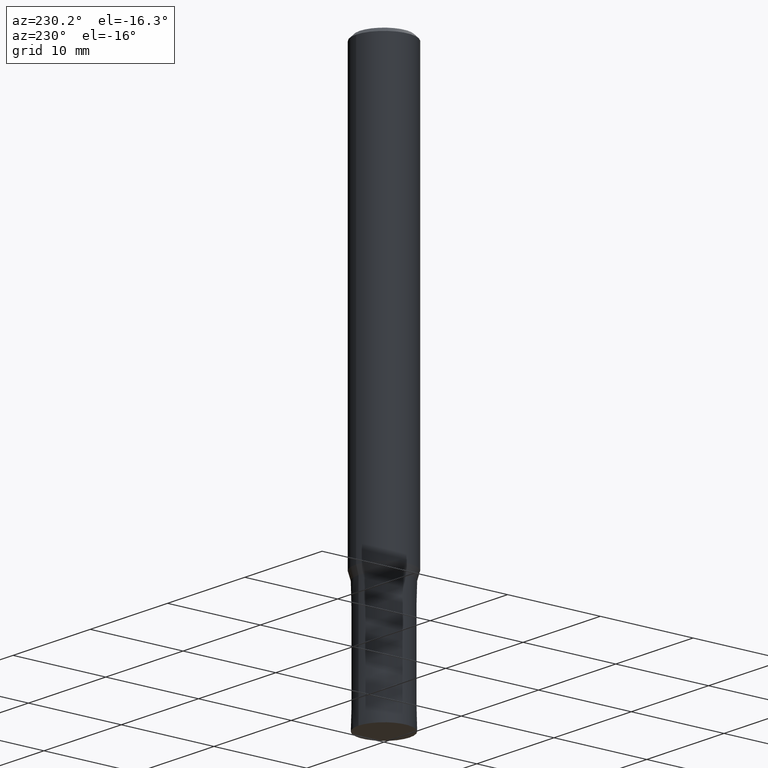
[diagram: clean part render]
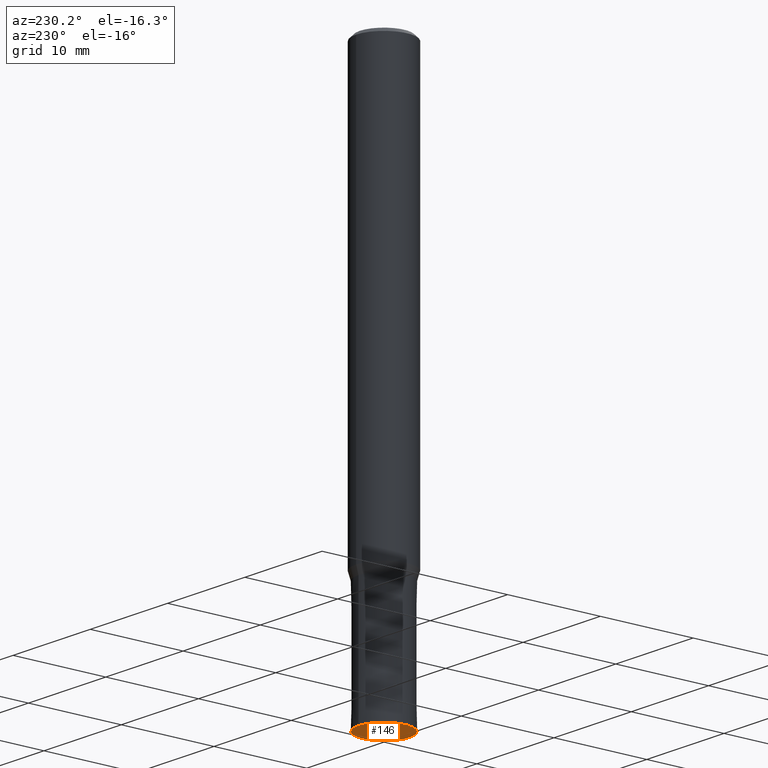
[diagram: same view with one face highlighted and labeled with its STEP entity id]
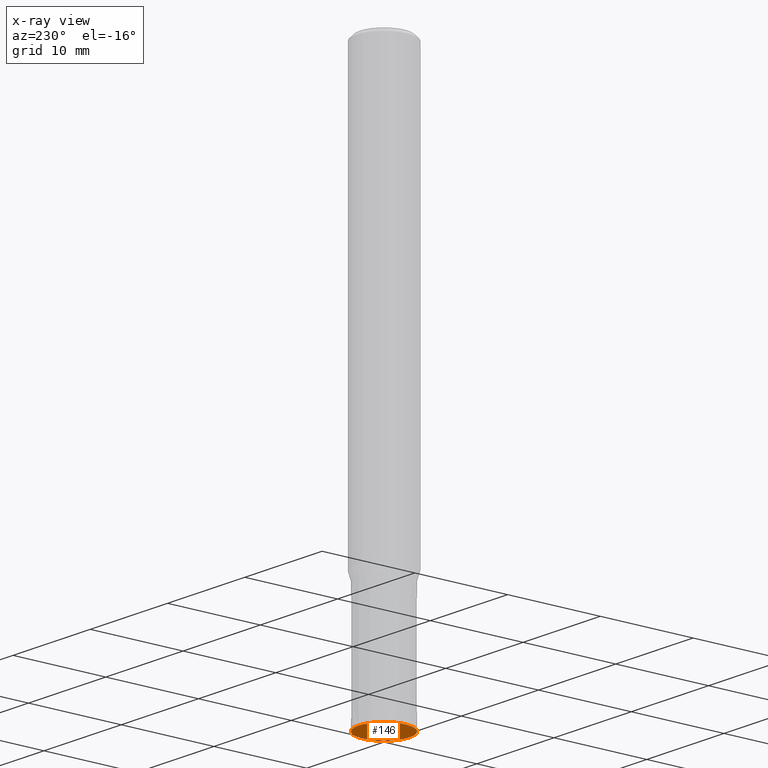
[diagram: x-ray of the same camera — body ghosted, the highlighted face saturated]
A machine part, auxiliary view. The second image highlights one B-rep face of the part: STEP entity #146.
The next image is the same camera in x-ray: the body ghosted, the highlighted face saturated — about 0% of this face is hidden behind the body in this view.
In plain terms, the highlighted planar face has unit normal (0, 0, -1).
Its self-contained STEP definition (entity closure, byte-faithful):
#94=VERTEX_POINT('',#216);
#120=VERTEX_POINT('',#247);
#122=EDGE_CURVE('',#120,#94,#249,.T.);
#124=EDGE_CURVE('',#94,#120,#251,.T.);
#146=ADVANCED_FACE('',(#275),#276,.T.);
#216=CARTESIAN_POINT('',(3.36766747301154E-016,-2.75,-60.0));
#247=CARTESIAN_POINT('',(0.0,2.75,-60.0));
#249=CIRCLE('',#387,2.75);
#251=CIRCLE('',#390,2.75);
#275=FACE_OUTER_BOUND('',#423,.T.);
#276=PLANE('',#424);
#387=AXIS2_PLACEMENT_3D('',#539,#540,#541);
#390=AXIS2_PLACEMENT_3D('',#542,#543,#544);
#423=EDGE_LOOP('',(#567,#568));
#424=AXIS2_PLACEMENT_3D('',#569,#570,#571);
#539=CARTESIAN_POINT('',(0.0,0.0,-60.0));
#540=DIRECTION('',(0.0,0.0,-1.0));
#541=DIRECTION('',(0.0,1.0,0.0));
#542=CARTESIAN_POINT('',(0.0,0.0,-60.0));
#543=DIRECTION('',(0.0,0.0,-1.0));
#544=DIRECTION('',(0.0,1.0,0.0));
#567=ORIENTED_EDGE('',*,*,#122,.T.);
#568=ORIENTED_EDGE('',*,*,#124,.T.);
#569=CARTESIAN_POINT('',(0.0,1.3725,-60.0));
#570=DIRECTION('',(0.0,0.0,-1.0));
#571=DIRECTION('',(0.0,1.0,0.0));